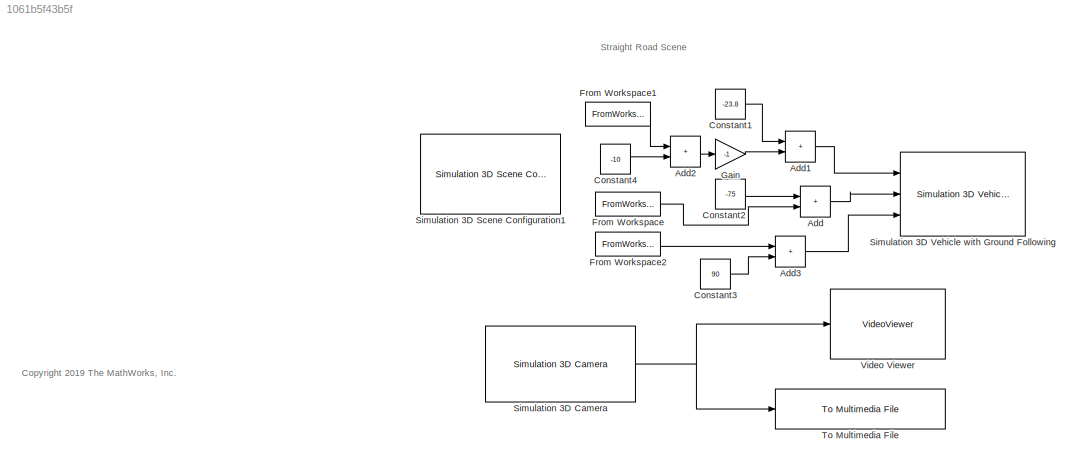
MODEL slx_1061b5f43b5f
KIND model
CONFIG AbsTol = auto
CONFIG EnableMultiTasking = off
CONFIG FixedStep = auto
CONFIG MaxStep = auto
CONFIG MinStep = auto
CONFIG RelTol = 1e-3
CONFIG SampleTimeConstraint = Unconstrained
CONFIG SolverName = VariableStepAuto
CONFIG StartTime = 0.0
CONFIG StopTime = 10.5
BLOCK [Sum] Add
  IconShape = rectangular
  Ports = [2, 1]
BLOCK [Sum] Add1
  IconShape = rectangular
  Ports = [2, 1]
BLOCK [Sum] Add2
  IconShape = rectangular
  Ports = [2, 1]
BLOCK [Sum] Add3
  IconShape = rectangular
  Ports = [2, 1]
BLOCK [Constant] Constant1
  Value = -23.8
BLOCK [Constant] Constant2
  Value = -75
BLOCK [Constant] Constant3
  Value = 90
BLOCK [Constant] Constant4
  Value = -10
BLOCK [FromWorkspace] From Workspace
  OutDataTypeStr = double
  SampleTime = 0.05
  VariableName = myRefX
BLOCK [FromWorkspace] From Workspace1
  OutDataTypeStr = double
  SampleTime = 0.05
  VariableName = myRefY
BLOCK [FromWorkspace] From Workspace2
  OutDataTypeStr = double
  SampleTime = 0.05
  VariableName = myRefYaw
BLOCK [Gain] Gain
  Gain = -1
BLOCK [Reference] Simulation 3D Camera  REF=sim3dcameralib/Simulation 3D Camera
  Ports = [0, 1]
  SourceBlock = sim3dcameralib/Simulation 3D Camera
  SourceProductBaseCode = AE,DR,UV,VE
  SourceType = Simulation 3D Camera
BLOCK [Reference] Simulation 3D Scene Configuration1  REF=sim3dlib/Simulation 3D Scene Configuration
  Ports = []
  Priority = 0
  SourceBlock = sim3dlib/Simulation 3D Scene Configuration
  SourceProductBaseCode = AE,DR,UV,VE
  SourceType = Simulation 3D Scene Configuration
BLOCK [Reference] Simulation 3D Vehicle with Ground Following  REF=sim3dautolib/Simulation 3D Vehicle with Ground Following
  Ports = [3]
  Priority = -1
  SourceBlock = sim3dautolib/Simulation 3D Vehicle with Ground Following
  SourceProductBaseCode = AE,DR,UV,VE
  SourceType = Simulation 3D Vehicle with Ground Following
BLOCK [Reference] To Multimedia File  REF=dspvision/To Multimedia File
  Ports = [1]
  SourceBlock = dspvision/To Multimedia File
  SourceProductBaseCode = DS,HW,VP
  SourceType = To Multimedia File
BLOCK [VideoViewer] Video Viewer
  FigPos = [553 740.4 680 522.4]
  Ports = [1]
  ScopeSpecificationString = vipscopes.VideoViewerScopeCfg('CurrentConfiguration', extmgr.ConfigurationSet(extmgr.Configuration('Core','General UI',true),extmgr.Configuration('Core','Source UI',true),extmgr.Configuration('Sources','WiredSimulink',true),extmgr.Configuration('Visuals','Video',true),extmgr.Configuration('Tools','Image Navigation Tools',true),extmgr.Configuration('Tools','Image Tool',true),extmgr.Configuration('T...<+79ch>
ANNOTATION (root): <copyright redacted>
ANNOTATION (root): Straight Road Scene
LINE Add1:1 -> Simulation 3D Vehicle with Ground Following:1
LINE Add2:1 -> Gain:1
LINE Add3:1 -> Simulation 3D Vehicle with Ground Following:3
LINE Add:1 -> Simulation 3D Vehicle with Ground Following:2
LINE Constant1:1 -> Add1:1
LINE Constant2:1 -> Add:1
LINE Constant3:1 -> Add3:2
LINE Constant4:1 -> Add2:2
LINE From Workspace1:1 -> Add2:1
LINE From Workspace2:1 -> Add3:1
LINE From Workspace:1 -> Add:2
LINE Gain:1 -> Add1:2
NET Simulation 3D Camera:1 -> To Multimedia File:1, Video Viewer:1
note: NET lines group one-source signal fan-out (src -> all destinations, sorted); 1:1 wires keep LINE
